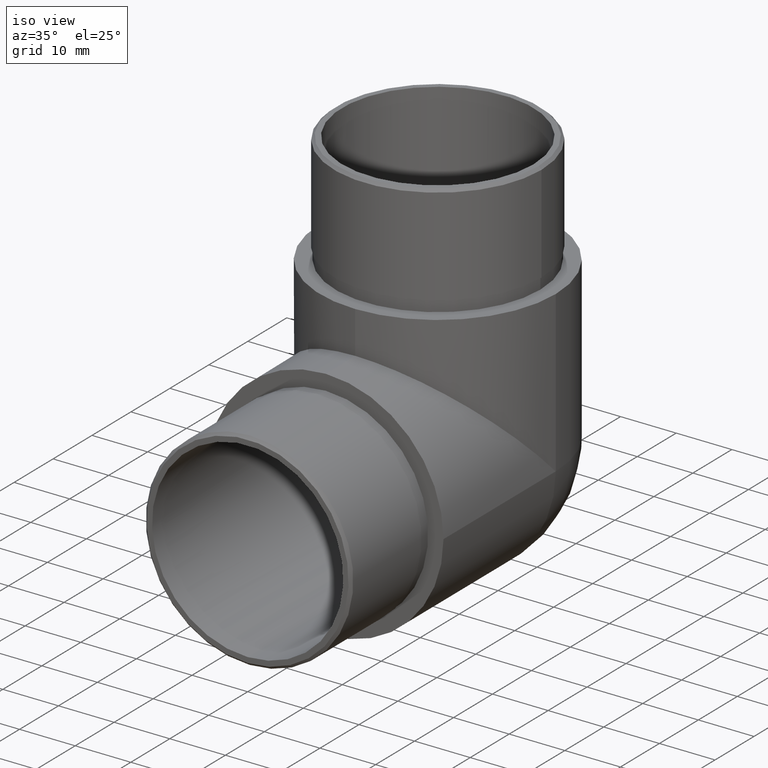
[diagram: clean part render]
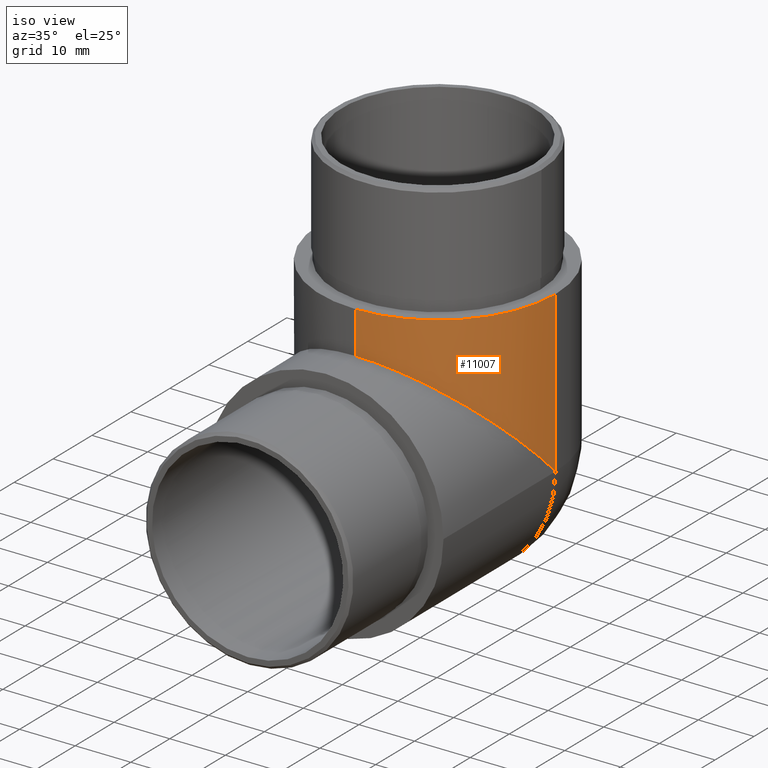
[diagram: same view with one face highlighted and labeled with its STEP entity id]
A machine part, iso view. The second image highlights one B-rep face of the part: STEP entity #11007.
In plain terms, the highlighted cylindrical surface (partial cylindrical patch) has radius 21.2 mm, axis along (0, 0, 1).
Its self-contained STEP definition (entity closure, byte-faithful):
#572 = AXIS2_PLACEMENT_3D ( 'NONE', #1459, #2463, #637 ) ;
#637 = DIRECTION ( 'NONE',  ( 1.000000000000000000, 0.0000000000000000000, 0.0000000000000000000 ) ) ;
#800 = CARTESIAN_POINT ( 'NONE',  ( 21.19999999999999600, 28.80000000000001100, 21.19999999999999900 ) ) ;
#899 = EDGE_CURVE ( 'NONE', #8142, #2346, #7210, .T. ) ;
#1217 = FACE_OUTER_BOUND ( 'NONE', #11499, .T. ) ;
#1345 = VERTEX_POINT ( 'NONE', #11163 ) ;
#1459 = CARTESIAN_POINT ( 'NONE',  ( -3.469446951953614200E-015, 28.80000000000000800, 42.39999999999999100 ) ) ;
#1835 = CARTESIAN_POINT ( 'NONE',  ( 21.19999999999999600, 28.80000000000000800, 50.00000000000000000 ) ) ;
#2049 = DIRECTION ( 'NONE',  ( 0.0000000000000000000, 0.0000000000000000000, 1.000000000000000000 ) ) ;
#2346 = VERTEX_POINT ( 'NONE', #1835 ) ;
#2463 = DIRECTION ( 'NONE',  ( 0.0000000000000000000, 0.0000000000000000000, 1.000000000000000000 ) ) ;
#2582 = VERTEX_POINT ( 'NONE', #5223 ) ;
#3055 = VECTOR ( 'NONE', #2049, 1000.000000000000000 ) ;
#3618 = EDGE_CURVE ( 'NONE', #8142, #1345, #7838, .T. ) ;
#4611 = CARTESIAN_POINT ( 'NONE',  ( 21.19999999999999200, 16.38132752230962600, 33.61867247769037400 ) ) ;
#4882 = CARTESIAN_POINT ( 'NONE',  ( -3.469446951953614200E-015, 28.80000000000000800, 50.00000000000000000 ) ) ;
#5223 = CARTESIAN_POINT ( 'NONE',  ( -3.469446951953614200E-015, 7.600000000000009400, 50.00000000000000000 ) ) ;
#6244 = EDGE_CURVE ( 'NONE', #2582, #2346, #6897, .T. ) ;
#6404 = CYLINDRICAL_SURFACE ( 'NONE', #572, 21.19999999999999900 ) ;
#6647 = CARTESIAN_POINT ( 'NONE',  ( 21.19999999999999600, 28.80000000000000800, 1.818672477690387500 ) ) ;
#6742 = AXIS2_PLACEMENT_3D ( 'NONE', #4882, #11569, #8760 ) ;
#6897 = CIRCLE ( 'NONE', #6742, 21.19999999999999900 ) ;
#7058 = ORIENTED_EDGE ( 'NONE', *, *, #899, .T. ) ;
#7210 = LINE ( 'NONE', #6647, #3055 ) ;
#7239 = ORIENTED_EDGE ( 'NONE', *, *, #6244, .F. ) ;
#7838 =( BOUNDED_CURVE ( )  B_SPLINE_CURVE ( 3, ( #800, #4611, #10362, #12249 ),
 .UNSPECIFIED., .F., .T. ) 
 B_SPLINE_CURVE_WITH_KNOTS ( ( 4, 4 ),
 ( 4.712388980384689700, 6.283185307179586200 ),
 .UNSPECIFIED. ) 
 CURVE ( )  GEOMETRIC_REPRESENTATION_ITEM ( )  RATIONAL_B_SPLINE_CURVE ( ( 1.000000000000000000, 0.8047378541243649400, 0.8047378541243649400, 1.000000000000000000 ) ) 
 REPRESENTATION_ITEM ( '' )  );
#8142 = VERTEX_POINT ( 'NONE', #11297 ) ;
#8494 = VECTOR ( 'NONE', #12141, 1000.000000000000000 ) ;
#8760 = DIRECTION ( 'NONE',  ( 1.000000000000000000, 0.0000000000000000000, 0.0000000000000000000 ) ) ;
#9194 = CARTESIAN_POINT ( 'NONE',  ( 3.469446951953614200E-015, 7.600000000000009400, 42.39999999999999100 ) ) ;
#9805 = LINE ( 'NONE', #9194, #8494 ) ;
#10211 = ORIENTED_EDGE ( 'NONE', *, *, #11994, .T. ) ;
#10362 = CARTESIAN_POINT ( 'NONE',  ( 12.41867247769037700, 7.600000000000009400, 42.39999999999998400 ) ) ;
#11007 = ADVANCED_FACE ( 'NONE', ( #1217 ), #6404, .T. ) ;
#11163 = CARTESIAN_POINT ( 'NONE',  ( -1.734723475976807100E-015, 7.600000000000009400, 42.39999999999999100 ) ) ;
#11297 = CARTESIAN_POINT ( 'NONE',  ( 21.19999999999999600, 28.80000000000001100, 21.19999999999999900 ) ) ;
#11499 = EDGE_LOOP ( 'NONE', ( #7239, #10211, #12033, #7058 ) ) ;
#11569 = DIRECTION ( 'NONE',  ( 0.0000000000000000000, 0.0000000000000000000, 1.000000000000000000 ) ) ;
#11994 = EDGE_CURVE ( 'NONE', #2582, #1345, #9805, .T. ) ;
#12033 = ORIENTED_EDGE ( 'NONE', *, *, #3618, .F. ) ;
#12141 = DIRECTION ( 'NONE',  ( -0.0000000000000000000, -0.0000000000000000000, -1.000000000000000000 ) ) ;
#12249 = CARTESIAN_POINT ( 'NONE',  ( -1.734723475976807100E-015, 7.600000000000009400, 42.39999999999999100 ) ) ;